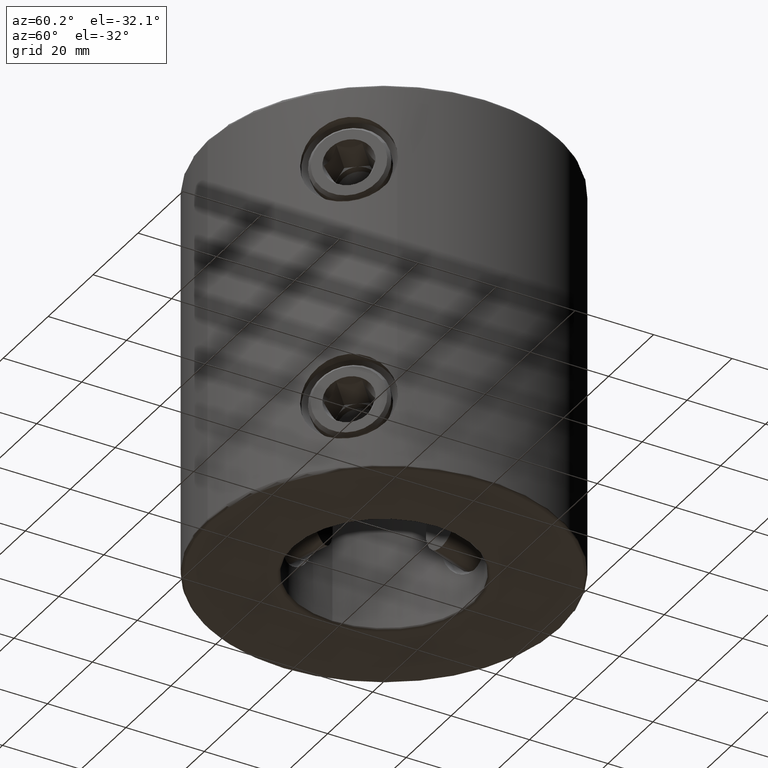
[diagram: clean part render]
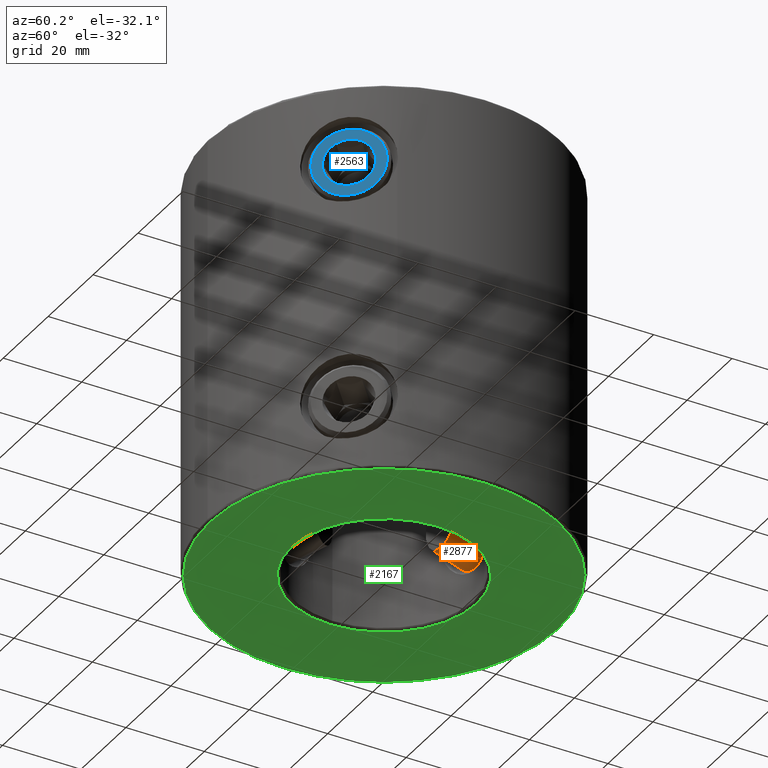
[diagram: same view with three faces highlighted in distinct colors, each labeled with its STEP entity id]
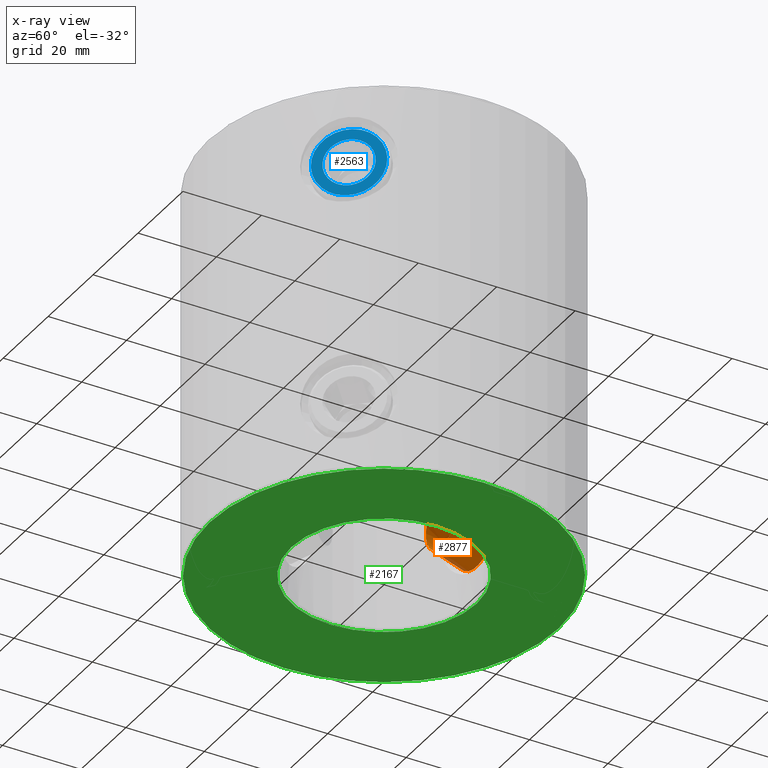
[diagram: x-ray of the same camera — body ghosted, the three highlighted faces saturated]
A machine part, auxiliary view with three faces highlighted in distinct colors.
The next image is the same camera in x-ray (body ghosted, the three faces saturated) — at least one of them is partly hidden behind the body in this view.
Their STEP definitions:

[orange] entity #2877 — the highlighted conical surface has half-angle 15 deg.
#1281=VERTEX_POINT('NONE',#3414);
#1307=EDGE_CURVE('NONE',#2119,#1501,#3441,.T.);
#1501=VERTEX_POINT('NONE',#3653);
#1557=EDGE_CURVE('NONE',#2943,#1281,#3714,.T.);
#2119=VERTEX_POINT('NONE',#4350);
#2145=EDGE_CURVE('NONE',#2943,#2119,#4378,.T.);
#2877=ADVANCED_FACE('NONE',(#5202),#5203,.T.);
#2903=EDGE_CURVE('NONE',#1281,#1501,#5233,.T.);
#2943=VERTEX_POINT('NONE',#5273);
#3414=CARTESIAN_POINT('',(-6.06217782649095,14.6596,-77.45));
#3441=CIRCLE('',#5991,9.4);
#3653=CARTESIAN_POINT('',(-8.1406387955736,23.6165219381653,-76.25));
#3714=CIRCLE('',#6711,7.0);
#4350=CARTESIAN_POINT('',(8.14063879557384,23.6165219381653,-85.65));
#4378=LINE('',#8230,#8231);
#5202=FACE_OUTER_BOUND('',#9905,.T.);
#5203=CONICAL_SURFACE('',#9906,7.0,0.26179938779915);
#5233=LINE('',#9944,#9945);
#5273=CARTESIAN_POINT('',(6.06217782649119,14.6596,-84.45));
#5991=AXIS2_PLACEMENT_3D('',#10949,#10950,#10951);
#6711=AXIS2_PLACEMENT_3D('',#11256,#11257,#11258);
#8230=CARTESIAN_POINT('',(6.06217782649119,14.6596,-84.45));
#8231=VECTOR('',#12069,1000.0);
#9905=EDGE_LOOP('',(#13058,#13059,#13060,#13061));
#9906=AXIS2_PLACEMENT_3D('',#13062,#13063,#13064);
#9944=CARTESIAN_POINT('',(-6.06217782649095,14.6596,-77.45));
#9945=VECTOR('',#13100,1000.0);
#10949=CARTESIAN_POINT('',(1.19923217161959E-013,23.6165219381653,-80.95));
#10950=DIRECTION('',(-4.44089209850061E-016,1.0,4.27722381409939E-016));
#10951=DIRECTION('',(0.866025403784438,5.98453727981681E-016,-0.5));
#11256=CARTESIAN_POINT('',(1.23900889548167E-013,14.6596,-80.95));
#11257=DIRECTION('',(-4.44089209850061E-016,1.0,4.27722381409939E-016));
#11258=DIRECTION('',(0.866025403784438,5.98453727981681E-016,-0.5));
#12069=DIRECTION('',(0.224143868042013,0.965925826289068,-0.12940952255126));
#13058=ORIENTED_EDGE('',*,*,#1557,.T.);
#13059=ORIENTED_EDGE('',*,*,#2903,.T.);
#13060=ORIENTED_EDGE('',*,*,#1307,.F.);
#13061=ORIENTED_EDGE('',*,*,#2145,.F.);
#13062=CARTESIAN_POINT('',(1.23900889548167E-013,14.6596,-80.95));
#13063=DIRECTION('',(-4.44089209850061E-016,1.0,4.27722381409939E-016));
#13064=DIRECTION('',(0.866025403784438,5.98453727981681E-016,-0.5));
#13100=DIRECTION('',(-0.224143868042014,0.965925826289068,0.129409522551261));

[blue] entity #2563 — the highlighted planar face has unit normal (-0.766, 0.6428, -0).
#1289=EDGE_CURVE('NONE',#1881,#1399,#3422,.T.);
#1399=VERTEX_POINT('NONE',#3542);
#1485=VERTEX_POINT('NONE',#3635);
#1755=EDGE_CURVE('NONE',#2595,#1485,#3932,.T.);
#1881=VERTEX_POINT('NONE',#4080);
#1953=EDGE_CURVE('NONE',#1485,#2595,#4158,.T.);
#2563=ADVANCED_FACE('NONE',(#4850,#4851),#4852,.F.);
#2595=VERTEX_POINT('NONE',#4889);
#3037=EDGE_CURVE('NONE',#1399,#1881,#5384,.T.);
#3422=CIRCLE('',#5965,6.0);
#3542=CARTESIAN_POINT('',(35.3735567978568,-25.7657165945138,-24.2461524227066));
#3635=CARTESIAN_POINT('',(38.2325594021444,-22.3584899696178,-14.75));
#3932=CIRCLE('',#7155,8.6);
#4080=CARTESIAN_POINT('',(31.5168311397375,-30.3619832532276,-13.8538475772934));
#4158=CIRCLE('',#7674,8.6);
#4850=FACE_OUTER_BOUND('',#9187,.T.);
#4851=FACE_BOUND('',#9188,.T.);
#4852=PLANE('',#9189);
#4889=CARTESIAN_POINT('',(28.6578285354499,-33.7692098781235,-23.35));
#5384=CIRCLE('',#10272,6.0);
#5965=AXIS2_PLACEMENT_3D('',#10932,#10933,#10934);
#7155=AXIS2_PLACEMENT_3D('',#11493,#11494,#11495);
#7674=AXIS2_PLACEMENT_3D('',#11799,#11800,#11801);
#9187=EDGE_LOOP('',(#12631,#12632));
#9188=EDGE_LOOP('',(#12633,#12634));
#9189=AXIS2_PLACEMENT_3D('',#12635,#12636,#12637);
#10272=AXIS2_PLACEMENT_3D('',#13279,#13280,#13281);
#10932=CARTESIAN_POINT('',(33.4451939687971,-28.0638499238707,-19.05));
#10933=DIRECTION('',(0.766044443118975,-0.642787609686543,6.16790569236198E-016));
#10934=DIRECTION('',(-0.321393804843272,-0.383022221559487,0.866025403784439));
#11493=CARTESIAN_POINT('',(33.4451939687971,-28.0638499238707,-19.05));
#11494=DIRECTION('',(0.766044443118975,-0.642787609686543,3.84284876019524E-016));
#11495=DIRECTION('',(0.556670399226422,0.663413948168936,0.5));
#11799=CARTESIAN_POINT('',(33.4451939687971,-28.0638499238707,-19.05));
#11800=DIRECTION('',(0.766044443118975,-0.642787609686543,3.84284876019524E-016));
#11801=DIRECTION('',(0.556670399226422,0.663413948168936,0.5));
#12631=ORIENTED_EDGE('',*,*,#1953,.T.);
#12632=ORIENTED_EDGE('',*,*,#1755,.T.);
#12633=ORIENTED_EDGE('',*,*,#1289,.F.);
#12634=ORIENTED_EDGE('',*,*,#3037,.F.);
#12635=CARTESIAN_POINT('',(33.4451939687971,-28.0638499238707,-19.05));
#12636=DIRECTION('',(-0.766044443118975,0.642787609686543,-3.88578058618805E-016));
#12637=DIRECTION('',(0.321393804843272,0.383022221559488,-0.866025403784439));
#13279=CARTESIAN_POINT('',(33.4451939687971,-28.0638499238707,-19.05));
#13280=DIRECTION('',(0.766044443118975,-0.642787609686543,6.16790569236198E-016));
#13281=DIRECTION('',(-0.321393804843272,-0.383022221559487,0.866025403784439));

[green] entity #2167 — the highlighted planar face has unit normal (-0, 0, -1).
#1503=VERTEX_POINT('NONE',#3655);
#1509=VERTEX_POINT('NONE',#3662);
#1641=EDGE_CURVE('NONE',#2115,#1973,#3805,.T.);
#1821=EDGE_CURVE('NONE',#1503,#1509,#4004,.T.);
#1973=VERTEX_POINT('NONE',#4186);
#2115=VERTEX_POINT('NONE',#4346);
#2167=ADVANCED_FACE('NONE',(#4403,#4404),#4405,.T.);
#2249=EDGE_CURVE('NONE',#1509,#1503,#4494,.T.);
#2381=EDGE_CURVE('NONE',#1973,#2115,#4640,.T.);
#3655=CARTESIAN_POINT('',(2.61861252082995E-015,44.4783882181415,-100.0));
#3662=CARTESIAN_POINT('',(-2.86017761625612E-015,-44.4783882181415,-100.0));
#3805=CIRCLE('',#6867,23.6477501000801);
#4004=CIRCLE('',#7350,44.4783882181415);
#4186=CARTESIAN_POINT('',(-2.89591850261627E-015,23.6477501000801,-100.0));
#4346=CARTESIAN_POINT('',(-8.55233265929457E-029,-23.6477501000801,-100.0));
#4403=FACE_OUTER_BOUND('',#8310,.T.);
#4404=FACE_BOUND('',#8311,.T.);
#4405=PLANE('',#8312);
#4494=CIRCLE('',#8460,44.4783882181415);
#4640=CIRCLE('',#8760,23.6477501000801);
#6867=AXIS2_PLACEMENT_3D('',#11350,#11351,#11352);
#7350=AXIS2_PLACEMENT_3D('',#11576,#11577,#11578);
#8310=EDGE_LOOP('',(#12096,#12097));
#8311=EDGE_LOOP('',(#12098,#12099));
#8312=AXIS2_PLACEMENT_3D('',#12100,#12101,#12102);
#8460=AXIS2_PLACEMENT_3D('',#12199,#12200,#12201);
#8760=AXIS2_PLACEMENT_3D('',#12353,#12354,#12355);
#11350=CARTESIAN_POINT('',(5.78124455734438E-017,0.0,-100.0));
#11351=DIRECTION('',(-7.0422536177431E-015,-0.0,-1.0));
#11352=DIRECTION('',(1.0,0.0,-7.0422536177431E-015));
#11576=CARTESIAN_POINT('',(4.56414044000959E-017,0.0,-100.0));
#11577=DIRECTION('',(-6.86426248798714E-015,0.0,-1.0));
#11578=DIRECTION('',(-1.0,0.0,6.86426248798714E-015));
#12096=ORIENTED_EDGE('',*,*,#1821,.T.);
#12097=ORIENTED_EDGE('',*,*,#2249,.T.);
#12098=ORIENTED_EDGE('',*,*,#1641,.F.);
#12099=ORIENTED_EDGE('',*,*,#2381,.F.);
#12100=CARTESIAN_POINT('',(-6.08552058667353E-016,0.0,-100.0));
#12101=DIRECTION('',(-6.92211151635203E-015,0.0,-1.0));
#12102=DIRECTION('',(1.0,0.0,-6.92211151635203E-015));
#12199=CARTESIAN_POINT('',(4.56414044000959E-017,0.0,-100.0));
#12200=DIRECTION('',(-6.86426248798714E-015,0.0,-1.0));
#12201=DIRECTION('',(-1.0,0.0,6.86426248798714E-015));
#12353=CARTESIAN_POINT('',(5.78124455734438E-017,0.0,-100.0));
#12354=DIRECTION('',(-7.0422536177431E-015,-0.0,-1.0));
#12355=DIRECTION('',(1.0,0.0,-7.0422536177431E-015));